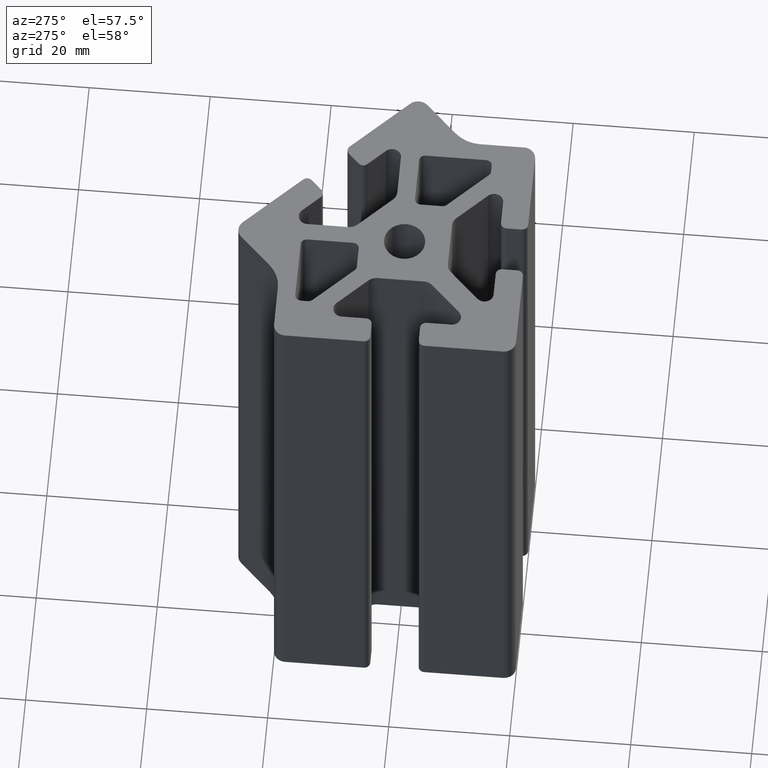
[diagram: clean part render]
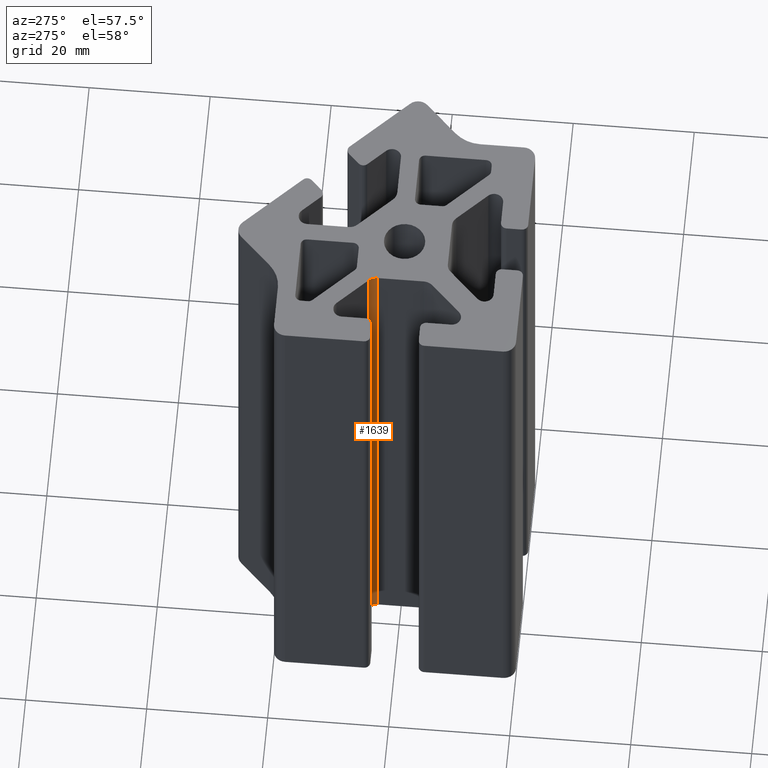
[diagram: same view with one face highlighted and labeled with its STEP entity id]
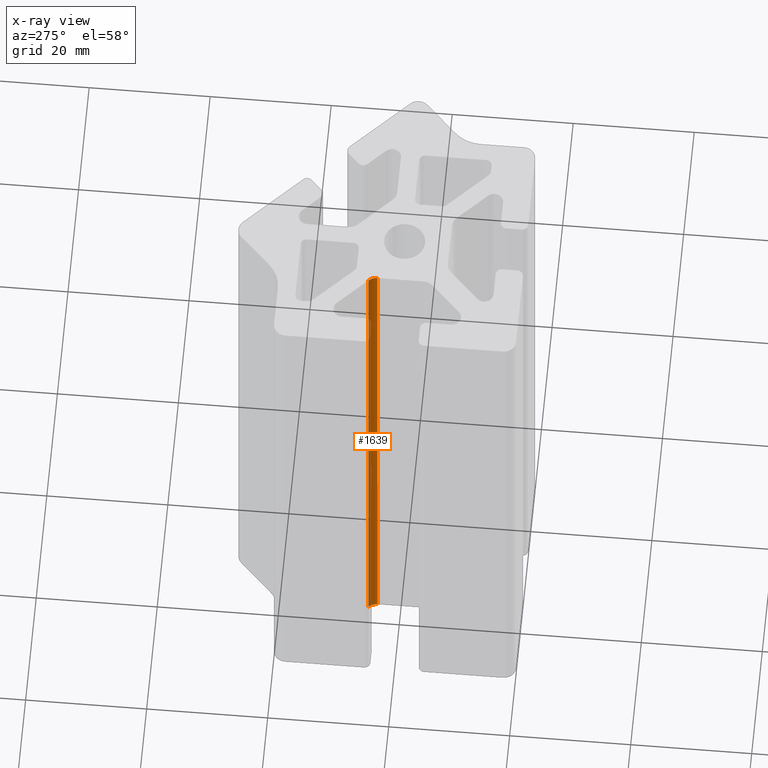
[diagram: x-ray of the same camera — body ghosted, the highlighted face saturated]
A machine part, auxiliary view. The second image highlights one B-rep face of the part: STEP entity #1639.
The next image is the same camera in x-ray: the body ghosted, the highlighted face saturated — about 29% of this face is hidden behind the body in this view.
In plain terms, the highlighted cylindrical surface (edge-blend (fillet) strip) has radius 2 mm, axis along (0, 0, -1).
Its self-contained STEP definition (entity closure, byte-faithful):
#34=CIRCLE('',#1740,1.99999300847672);
#35=CIRCLE('',#1741,1.99999300847672);
#112=CYLINDRICAL_SURFACE('',#1739,1.99999300847672);
#161=FACE_OUTER_BOUND('',#247,.T.);
#247=EDGE_LOOP('',(#1132,#1133,#1134,#1135));
#353=LINE('',#2473,#520);
#355=LINE('',#2479,#522);
#520=VECTOR('',#1962,100.);
#522=VECTOR('',#1968,100.);
#687=VERTEX_POINT('',#2470);
#688=VERTEX_POINT('',#2472);
#689=VERTEX_POINT('',#2476);
#690=VERTEX_POINT('',#2478);
#867=EDGE_CURVE('',#687,#688,#353,.T.);
#869=EDGE_CURVE('',#687,#689,#34,.T.);
#870=EDGE_CURVE('',#689,#690,#355,.T.);
#871=EDGE_CURVE('',#688,#690,#35,.T.);
#1132=ORIENTED_EDGE('',*,*,#869,.T.);
#1133=ORIENTED_EDGE('',*,*,#870,.T.);
#1134=ORIENTED_EDGE('',*,*,#871,.F.);
#1135=ORIENTED_EDGE('',*,*,#867,.F.);
#1639=ADVANCED_FACE('',(#161),#112,.F.);
#1739=AXIS2_PLACEMENT_3D('',#2475,#1964,#1965);
#1740=AXIS2_PLACEMENT_3D('',#2477,#1966,#1967);
#1741=AXIS2_PLACEMENT_3D('',#2480,#1969,#1970);
#1962=DIRECTION('',(0.,0.,1.));
#1964=DIRECTION('center_axis',(0.,0.,-1.));
#1965=DIRECTION('ref_axis',(0.707103291889477,0.7071102704664,0.));
#1966=DIRECTION('center_axis',(0.,0.,-1.));
#1967=DIRECTION('ref_axis',(1.,0.,0.));
#1968=DIRECTION('',(0.,0.,1.));
#1969=DIRECTION('center_axis',(0.,0.,-1.));
#1970=DIRECTION('ref_axis',(1.,0.,0.));
#2470=CARTESIAN_POINT('',(41.9142513515314,5.25734803528331,0.));
#2472=CARTESIAN_POINT('',(41.9142513515314,5.25734803528331,100.));
#2473=CARTESIAN_POINT('',(41.9142513515314,5.25734803528331,0.));
#2475=CARTESIAN_POINT('Origin',(40.5000497114816,3.84313243812844,0.));
#2476=CARTESIAN_POINT('',(42.5000427199583,3.84313243812844,0.));
#2477=CARTESIAN_POINT('Origin',(40.5000497114816,3.84313243812844,0.));
#2478=CARTESIAN_POINT('',(42.5000427199583,3.84313243812844,100.));
#2479=CARTESIAN_POINT('',(42.5000427199583,3.84313243812844,0.));
#2480=CARTESIAN_POINT('Origin',(40.5000497114816,3.84313243812844,100.));